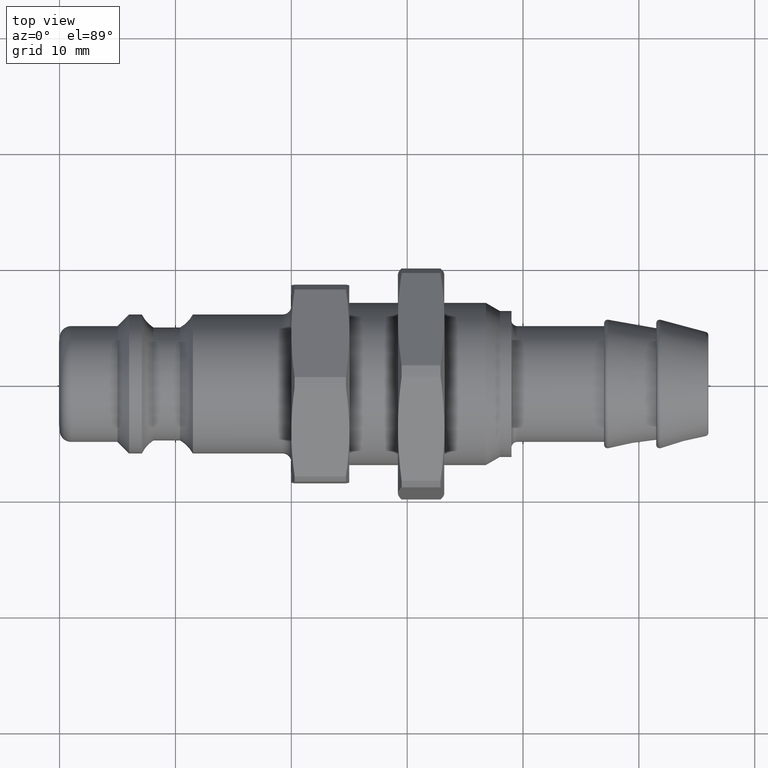
[diagram: clean part render]
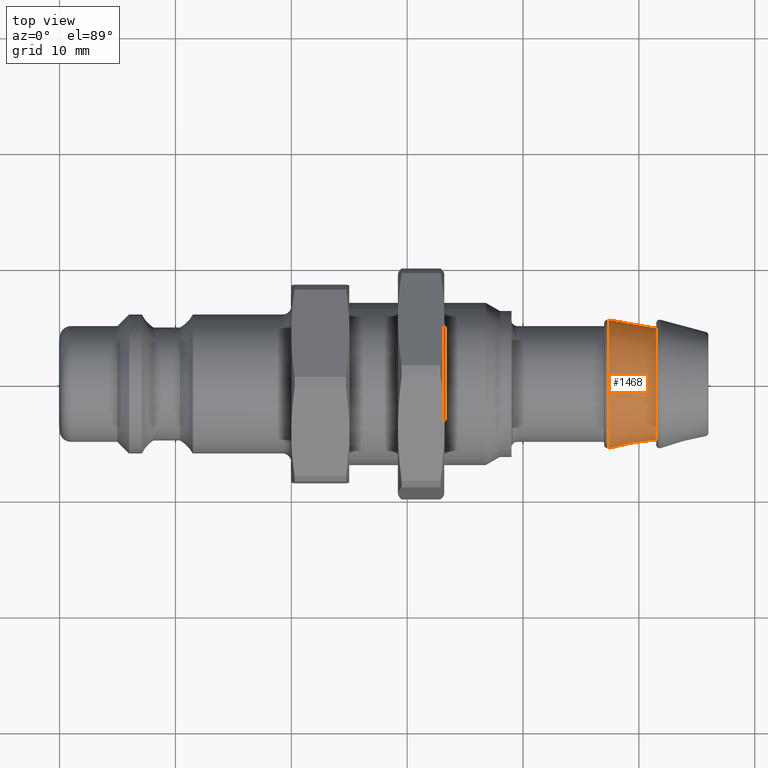
[diagram: same view with one face highlighted and labeled with its STEP entity id]
A machine part, top view. The second image highlights one B-rep face of the part: STEP entity #1468.
In plain terms, the highlighted conical surface has half-angle 10 deg.
Its self-contained STEP definition (entity closure, byte-faithful):
#1434=CARTESIAN_POINT('',(47.352094453300083,5.545442325903660,0.0));
#1435=VERTEX_POINT('',#1434);
#1436=CARTESIAN_POINT('',(47.352094453300083,0.0,0.0));
#1437=DIRECTION('',(1.0,0.0,0.0));
#1438=DIRECTION('',(0.0,1.0,0.0));
#1439=AXIS2_PLACEMENT_3D('',#1436,#1437,#1438);
#1440=CIRCLE('',#1439,5.545442325903660);
#1441=EDGE_CURVE('',#1435,#1435,#1440,.T.);
#1449=CARTESIAN_POINT('',(49.426047226650041,0.0,0.0));
#1450=DIRECTION('',(-1.0,0.0,0.0));
#1451=DIRECTION('',(0.0,1.0,0.0));
#1452=AXIS2_PLACEMENT_3D('',#1449,#1450,#1451);
#1453=CONICAL_SURFACE('',#1452,5.179748495246916,9.999999999999965);
#1454=CARTESIAN_POINT('',(51.500000000000000,4.814054664590172,0.0));
#1455=VERTEX_POINT('',#1454);
#1456=CARTESIAN_POINT('',(51.500000000000000,0.0,0.0));
#1457=DIRECTION('',(1.0,0.0,0.0));
#1458=DIRECTION('',(0.0,1.0,0.0));
#1459=AXIS2_PLACEMENT_3D('',#1456,#1457,#1458);
#1460=CIRCLE('',#1459,4.814054664590172);
#1461=EDGE_CURVE('',#1455,#1455,#1460,.T.);
#1462=ORIENTED_EDGE('',*,*,#1461,.F.);
#1463=EDGE_LOOP('',(#1462));
#1464=FACE_OUTER_BOUND('',#1463,.T.);
#1465=ORIENTED_EDGE('',*,*,#1441,.T.);
#1466=EDGE_LOOP('',(#1465));
#1467=FACE_BOUND('',#1466,.T.);
#1468=ADVANCED_FACE('',(#1464,#1467),#1453,.T.);